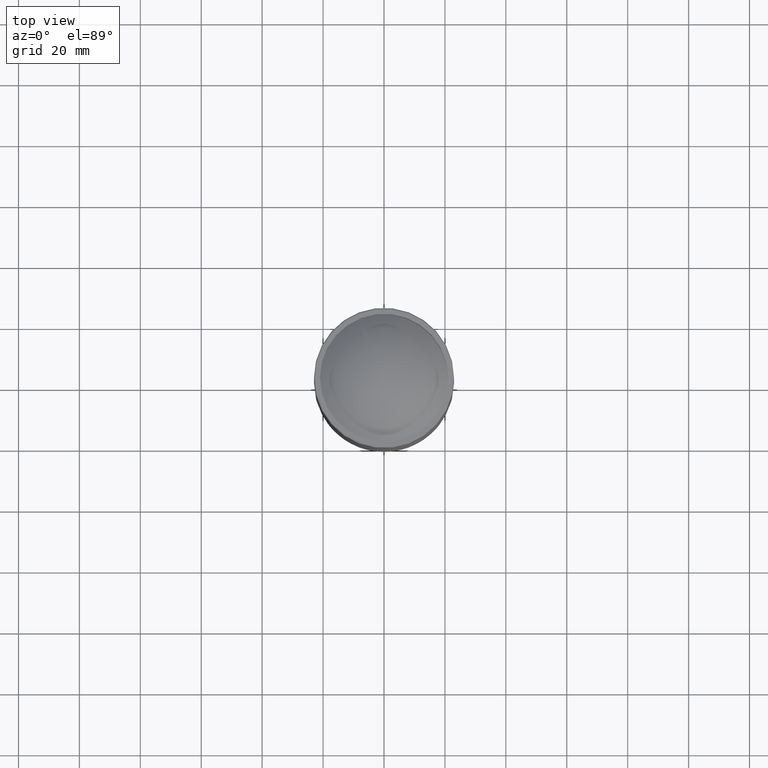
[diagram: clean part render]
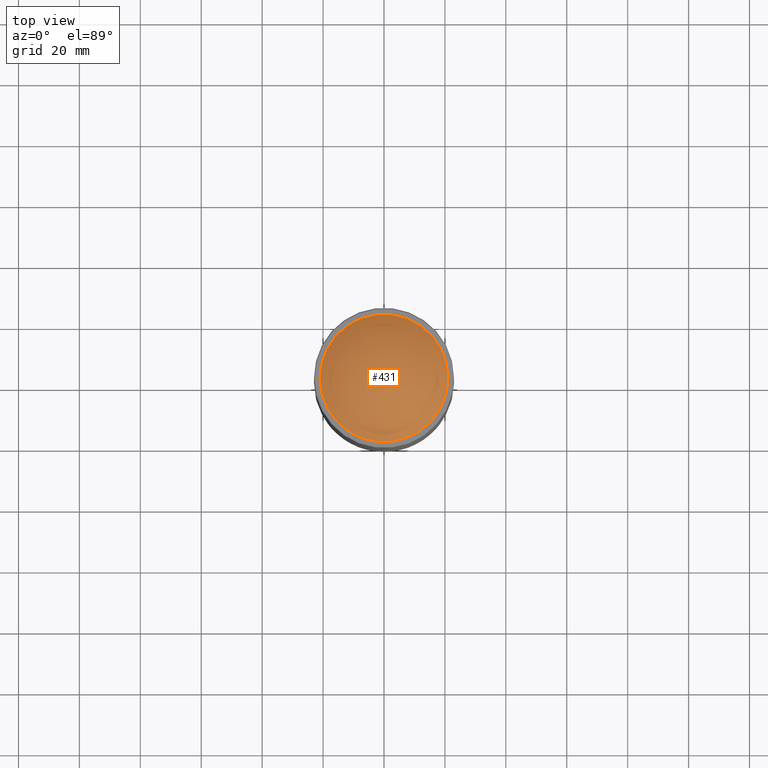
[diagram: same view with one face highlighted and labeled with its STEP entity id]
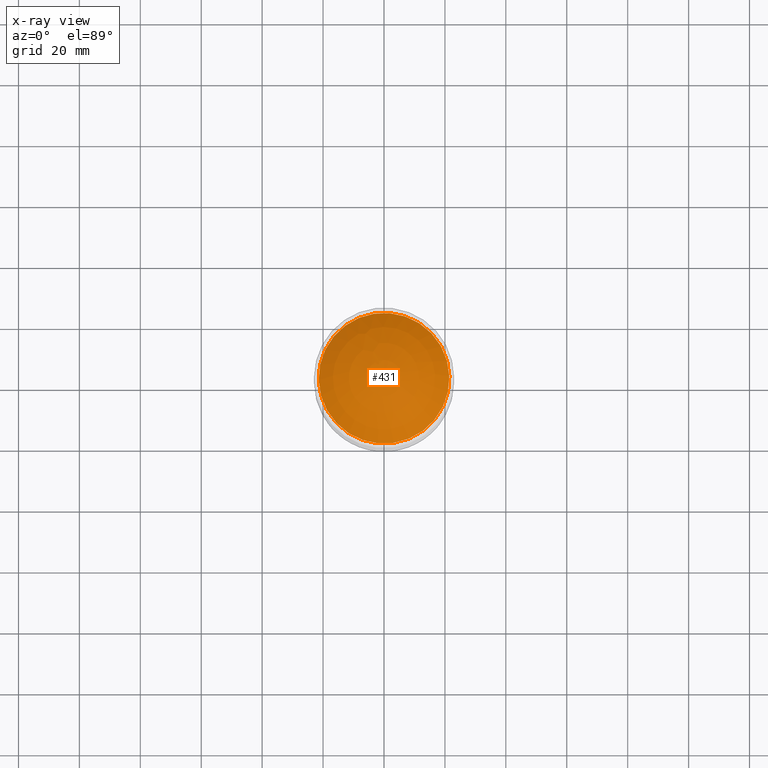
[diagram: x-ray of the same camera — body ghosted, the highlighted face saturated]
A machine part, top view. The second image highlights one B-rep face of the part: STEP entity #431.
The next image is the same camera in x-ray: the body ghosted, the highlighted face saturated — about 0% of this face is hidden behind the body in this view.
In plain terms, the highlighted spherical surface has radius 31.2095 mm.
Its self-contained STEP definition (entity closure, byte-faithful):
#55 = ORIENTED_EDGE ( 'NONE', *, *, #754, .F. ) ;
#203 = SPHERICAL_SURFACE ( 'NONE', #372, 31.20951493132240273 ) ;
#292 = CARTESIAN_POINT ( 'NONE',  ( -2.775557561562891351E-14, 1.387778780781445676E-14, -464.9999999999999432 ) ) ;
#372 = AXIS2_PLACEMENT_3D ( 'NONE', #469, #746, #616 ) ;
#431 = ADVANCED_FACE ( 'NONE', ( #611 ), #203, .T. ) ;
#436 = VERTEX_POINT ( 'NONE', #639 ) ;
#469 = CARTESIAN_POINT ( 'NONE',  ( -2.775557561562891351E-14, 6.938893903907228378E-15, -487.6680567275546423 ) ) ;
#496 = DIRECTION ( 'NONE',  ( 0.3830490080632379390, -0.9237280213470682178, 0.000000000000000000 ) ) ;
#519 = EDGE_LOOP ( 'NONE', ( #55 ) ) ;
#563 = DIRECTION ( 'NONE',  ( -1.232595164407830946E-32, -1.318609258053555361E-16, -1.000000000000000000 ) ) ;
#611 = FACE_OUTER_BOUND ( 'NONE', #519, .T. ) ;
#616 = DIRECTION ( 'NONE',  ( -0.3830490080632378835, 0.9237280213470681067, 0.000000000000000000 ) ) ;
#632 = CIRCLE ( 'NONE', #847, 21.45211006975307555 ) ;
#639 = CARTESIAN_POINT ( 'NONE',  ( 8.217209483082285715, -19.81591518845251088, -464.9999999999999432 ) ) ;
#746 = DIRECTION ( 'NONE',  ( 4.665676044949140993E-17, 1.934749774458438248E-17, 1.000000000000000000 ) ) ;
#754 = EDGE_CURVE ( 'NONE', #436, #436, #632, .T. ) ;
#847 = AXIS2_PLACEMENT_3D ( 'NONE', #292, #563, #496 ) ;